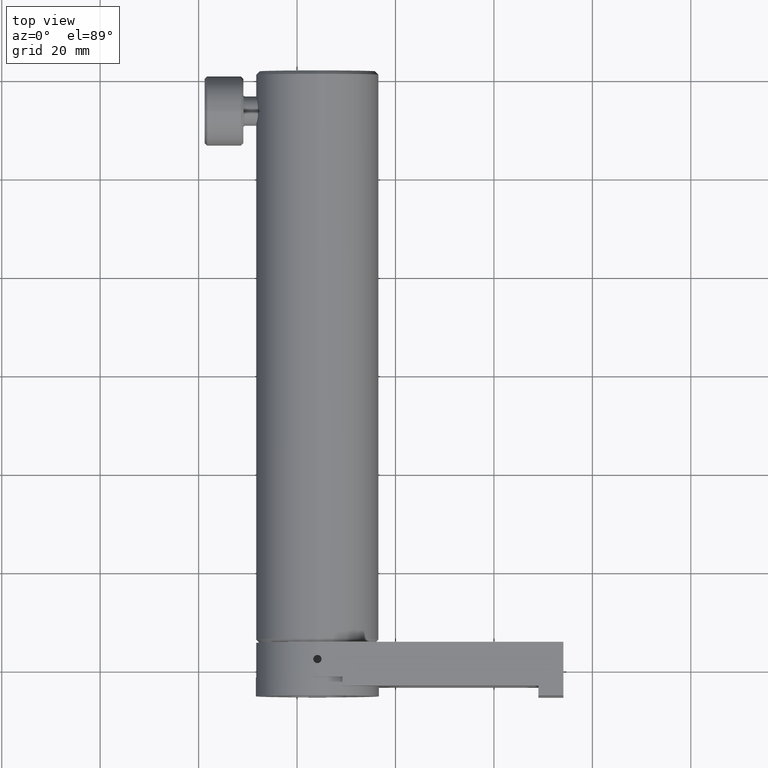
[diagram: clean part render]
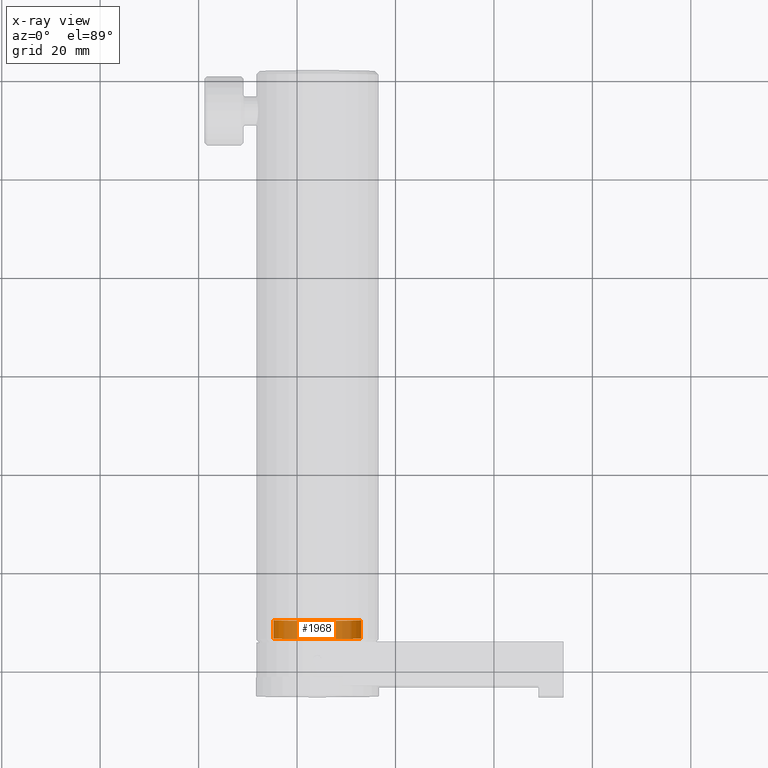
[diagram: x-ray — body ghosted, one internal face saturated and labeled with its STEP entity id]
A machine part, top view, then the same camera in x-ray: the body is ghosted and one INTERNAL B-rep face — a face not visible from any outside direction — is saturated and labeled: STEP entity #1968.
In plain terms, the highlighted cylindrical surface (partial cylindrical patch) has radius 8.89 mm, axis along (0, 1, 0).
Its self-contained STEP definition (entity closure, byte-faithful):
#107 = DIRECTION ( 'NONE',  ( 0.0000000000000000000, 1.000000000000000000, 0.0000000000000000000 ) ) ;
#240 = CIRCLE ( 'NONE', #3336, 8.889999999999998800 ) ;
#542 = VERTEX_POINT ( 'NONE', #2944 ) ;
#639 = ORIENTED_EDGE ( 'NONE', *, *, #2305, .F. ) ;
#817 = VERTEX_POINT ( 'NONE', #3485 ) ;
#914 = DIRECTION ( 'NONE',  ( 0.0000000000000000000, 1.000000000000000000, 0.0000000000000000000 ) ) ;
#1167 = LINE ( 'NONE', #2779, #3339 ) ;
#1194 = DIRECTION ( 'NONE',  ( 0.0000000000000000000, 1.000000000000000000, 0.0000000000000000000 ) ) ;
#1226 = AXIS2_PLACEMENT_3D ( 'NONE', #1455, #914, #3248 ) ;
#1253 = VECTOR ( 'NONE', #1194, 1000.000000000000000 ) ;
#1278 = CIRCLE ( 'NONE', #1600, 8.889999999999998800 ) ;
#1286 = CARTESIAN_POINT ( 'NONE',  ( -4.766933356108617100, 6.587134787764891400, -1.700886306799096900E-013 ) ) ;
#1291 = ORIENTED_EDGE ( 'NONE', *, *, #1527, .F. ) ;
#1341 = LINE ( 'NONE', #2687, #1253 ) ;
#1371 = ORIENTED_EDGE ( 'NONE', *, *, #2740, .T. ) ;
#1407 = ORIENTED_EDGE ( 'NONE', *, *, #2980, .T. ) ;
#1455 = CARTESIAN_POINT ( 'NONE',  ( 4.123066643891380800, 10.82893478776489400, 1.457167719820518700E-013 ) ) ;
#1527 = EDGE_CURVE ( 'NONE', #817, #542, #240, .T. ) ;
#1600 = AXIS2_PLACEMENT_3D ( 'NONE', #3591, #1839, #2126 ) ;
#1620 = VERTEX_POINT ( 'NONE', #1286 ) ;
#1839 = DIRECTION ( 'NONE',  ( 0.0000000000000000000, 1.000000000000000000, 0.0000000000000000000 ) ) ;
#1896 = CARTESIAN_POINT ( 'NONE',  ( 4.123066643891380800, 10.32093478776489600, 1.457167719820518700E-013 ) ) ;
#1968 = ADVANCED_FACE ( 'NONE', ( #2914 ), #2028, .T. ) ;
#2028 = CYLINDRICAL_SURFACE ( 'NONE', #1226, 8.889999999999998800 ) ;
#2126 = DIRECTION ( 'NONE',  ( -1.000000000000000000, 0.0000000000000000000, -3.552366734105304900E-014 ) ) ;
#2305 = EDGE_CURVE ( 'NONE', #3246, #817, #1167, .T. ) ;
#2360 = EDGE_LOOP ( 'NONE', ( #639, #1407, #1371, #1291 ) ) ;
#2462 = DIRECTION ( 'NONE',  ( 0.0000000000000000000, 1.000000000000000000, 0.0000000000000000000 ) ) ;
#2687 = CARTESIAN_POINT ( 'NONE',  ( -4.766933356108617100, 10.82893478776489400, -1.700886306799096900E-013 ) ) ;
#2740 = EDGE_CURVE ( 'NONE', #1620, #542, #1341, .T. ) ;
#2779 = CARTESIAN_POINT ( 'NONE',  ( 13.01306664389138000, 10.82893478776489400, 4.626108856484553500E-013 ) ) ;
#2789 = DIRECTION ( 'NONE',  ( -1.000000000000000000, 0.0000000000000000000, -3.552366734105304900E-014 ) ) ;
#2829 = CARTESIAN_POINT ( 'NONE',  ( 13.01306664389137800, 6.587134787764891400, 4.626108856484552500E-013 ) ) ;
#2914 = FACE_OUTER_BOUND ( 'NONE', #2360, .T. ) ;
#2944 = CARTESIAN_POINT ( 'NONE',  ( -4.766933356108617100, 10.32093478776489600, -1.689999196754676700E-013 ) ) ;
#2980 = EDGE_CURVE ( 'NONE', #3246, #1620, #1278, .T. ) ;
#3246 = VERTEX_POINT ( 'NONE', #2829 ) ;
#3248 = DIRECTION ( 'NONE',  ( -1.000000000000000000, 0.0000000000000000000, -3.552366734105304900E-014 ) ) ;
#3336 = AXIS2_PLACEMENT_3D ( 'NONE', #1896, #2462, #2789 ) ;
#3339 = VECTOR ( 'NONE', #107, 1000.000000000000000 ) ;
#3485 = CARTESIAN_POINT ( 'NONE',  ( 13.01306664389138000, 10.32093478776489600, 4.615221746440134300E-013 ) ) ;
#3591 = CARTESIAN_POINT ( 'NONE',  ( 4.123066643891380800, 6.587134787764891400, 1.457167719820518700E-013 ) ) ;